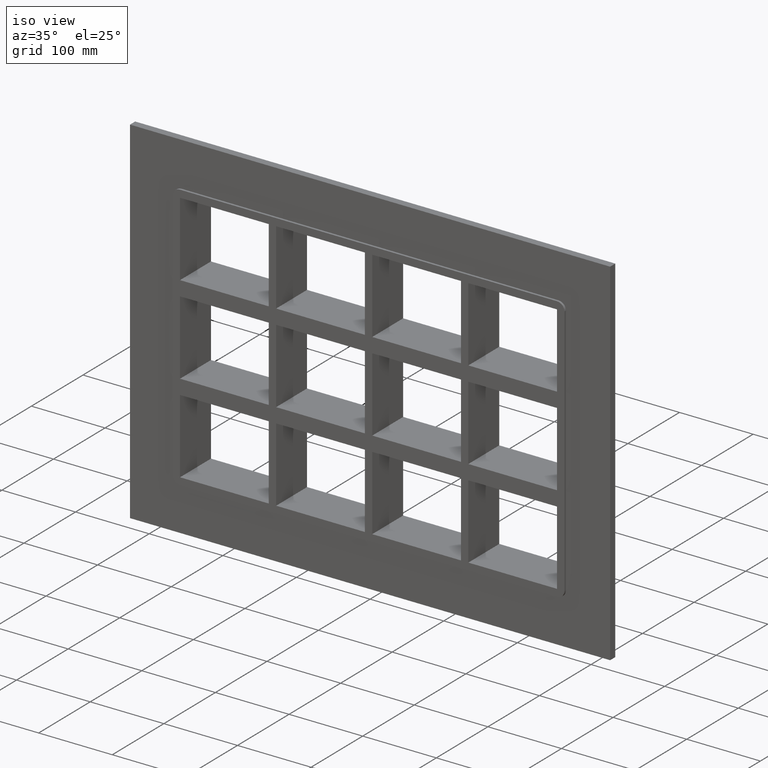
[diagram: clean part render]
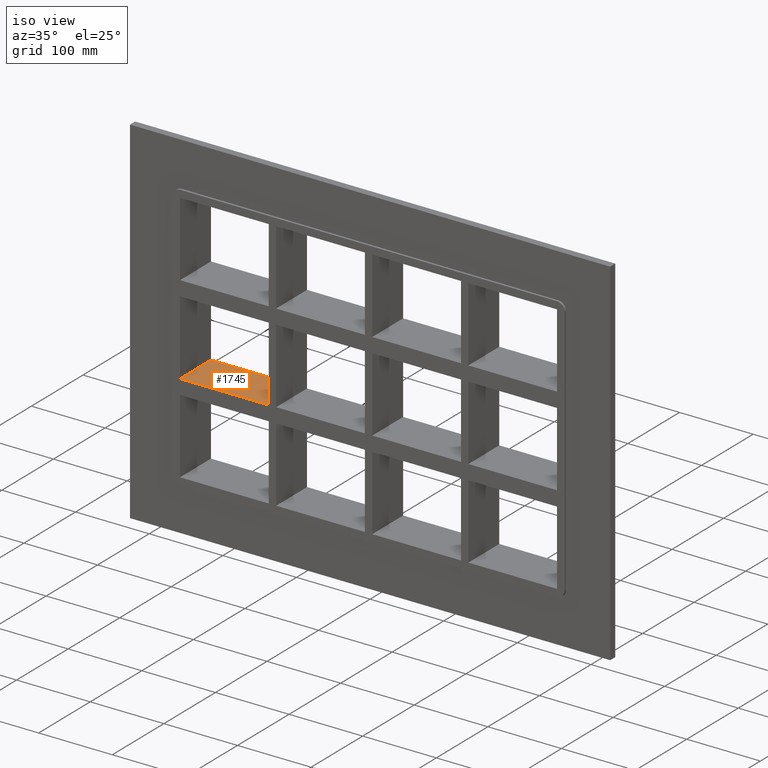
[diagram: same view with one face highlighted and labeled with its STEP entity id]
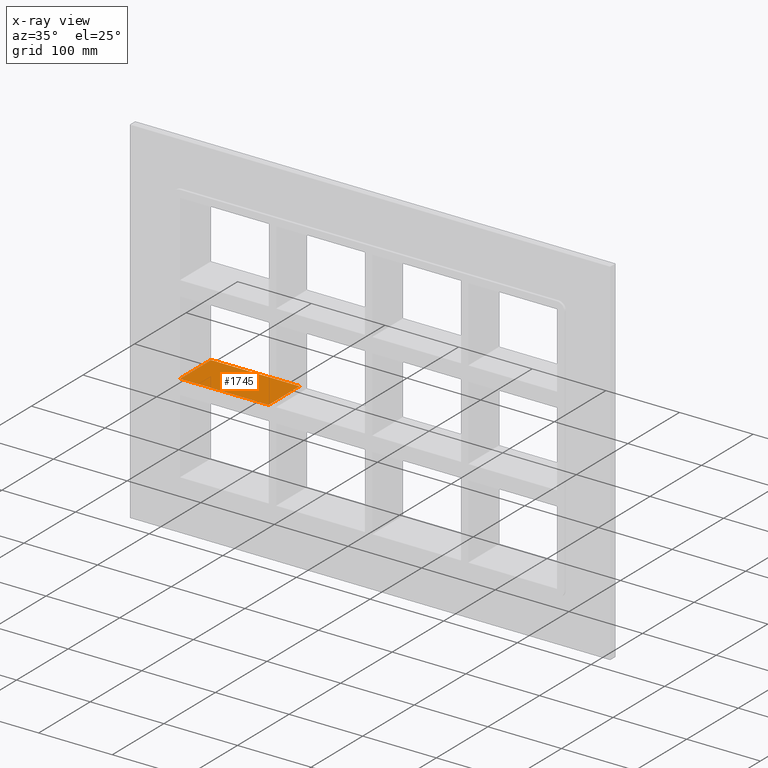
[diagram: x-ray of the same camera — body ghosted, the highlighted face saturated]
A machine part, iso view. The second image highlights one B-rep face of the part: STEP entity #1745.
The next image is the same camera in x-ray: the body ghosted, the highlighted face saturated — about 0% of this face is hidden behind the body in this view.
In plain terms, the highlighted planar face has unit normal (0, 0, 1).
Its self-contained STEP definition (entity closure, byte-faithful):
#642=CARTESIAN_POINT('',(-135.50000000000134,57.0,-50.500000000000114));
#643=VERTEX_POINT('',#642);
#650=CARTESIAN_POINT('',(-135.50000000000134,-3.0,-50.500000000000114));
#651=VERTEX_POINT('',#650);
#652=CARTESIAN_POINT('',(-135.50000000000131,57.0,-50.500000000000114));
#653=DIRECTION('',(0.0,-1.0,0.0));
#654=VECTOR('',#653,60.0);
#655=LINE('',#652,#654);
#656=EDGE_CURVE('',#643,#651,#655,.T.);
#773=CARTESIAN_POINT('',(-255.99999999999969,57.0,-50.500000000000114));
#774=VERTEX_POINT('',#773);
#781=CARTESIAN_POINT('',(-255.99999999999969,57.0,-50.500000000000114));
#782=DIRECTION('',(1.0,0.0,0.0));
#783=VECTOR('',#782,120.49999999999835);
#784=LINE('',#781,#783);
#785=EDGE_CURVE('',#774,#643,#784,.T.);
#1475=CARTESIAN_POINT('',(-255.99999999999969,-3.0,-50.500000000000114));
#1476=VERTEX_POINT('',#1475);
#1477=CARTESIAN_POINT('',(-255.99999999999969,-3.0,-50.500000000000114));
#1478=DIRECTION('',(1.0,0.0,0.0));
#1479=VECTOR('',#1478,120.49999999999835);
#1480=LINE('',#1477,#1479);
#1481=EDGE_CURVE('',#1476,#651,#1480,.T.);
#1729=CARTESIAN_POINT('',(-255.99999999999969,-3.0,-50.500000000000114));
#1730=DIRECTION('',(0.0,0.0,1.0));
#1731=DIRECTION('',(1.0,0.0,0.0));
#1732=AXIS2_PLACEMENT_3D('',#1729,#1730,#1731);
#1733=PLANE('',#1732);
#1734=ORIENTED_EDGE('',*,*,#656,.F.);
#1735=ORIENTED_EDGE('',*,*,#785,.F.);
#1736=CARTESIAN_POINT('',(-256.0,-3.0,-50.500000000000114));
#1737=DIRECTION('',(0.0,1.0,0.0));
#1738=VECTOR('',#1737,60.000000000000007);
#1739=LINE('',#1736,#1738);
#1740=EDGE_CURVE('',#1476,#774,#1739,.T.);
#1741=ORIENTED_EDGE('',*,*,#1740,.F.);
#1742=ORIENTED_EDGE('',*,*,#1481,.T.);
#1743=EDGE_LOOP('',(#1734,#1735,#1741,#1742));
#1744=FACE_OUTER_BOUND('',#1743,.T.);
#1745=ADVANCED_FACE('',(#1744),#1733,.T.);